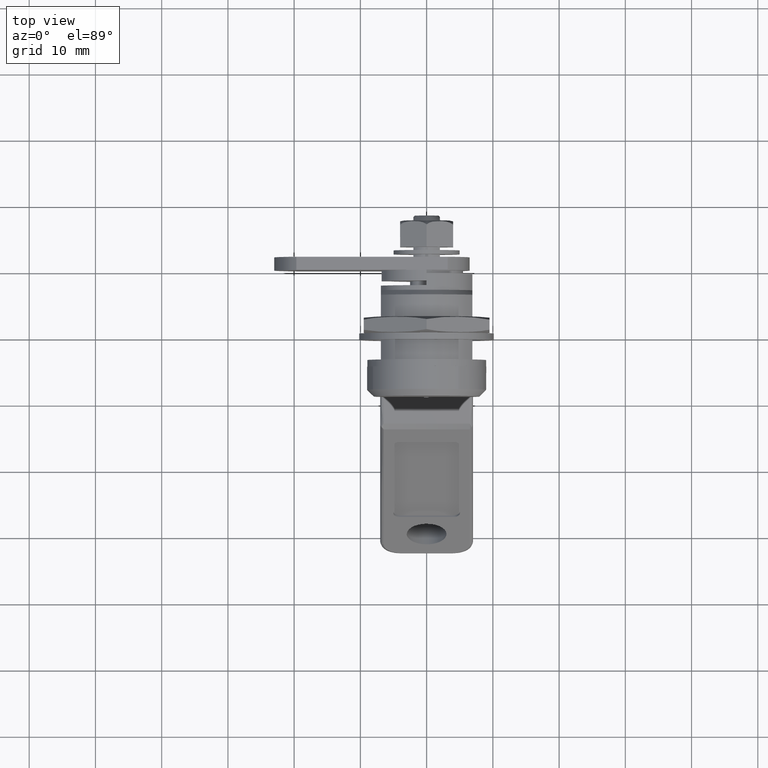
[diagram: clean part render]
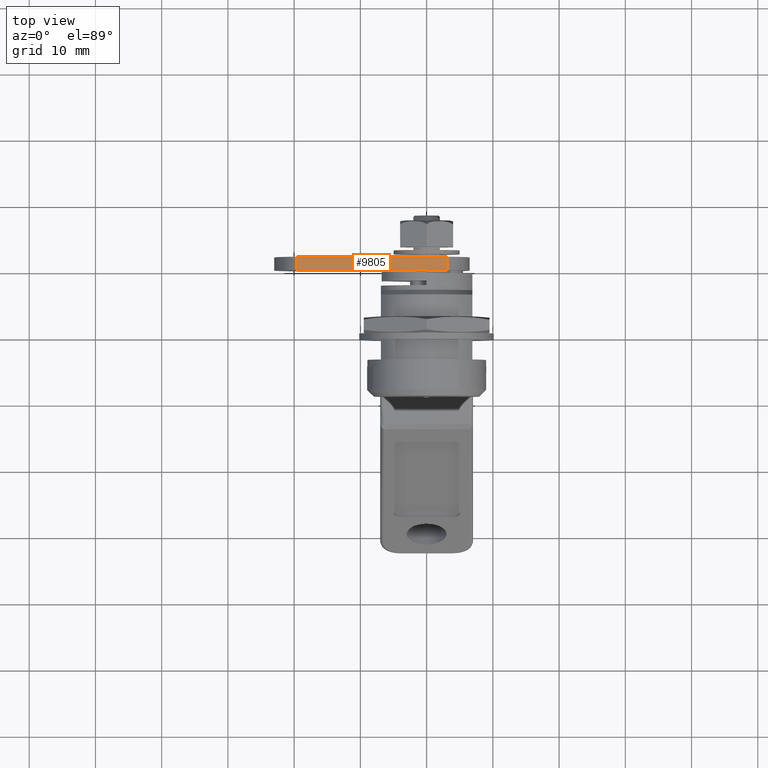
[diagram: same view with one face highlighted and labeled with its STEP entity id]
A machine part, top view. The second image highlights one B-rep face of the part: STEP entity #9805.
In plain terms, the highlighted face is a freeform B-spline surface patch.
Its self-contained STEP definition (entity closure, byte-faithful):
#9652=CARTESIAN_POINT('',(21.000005999999949,19.663706716497700,6.499998428728301));
#9653=VERTEX_POINT('',#9652);
#9676=CARTESIAN_POINT('',(19.000005999999949,19.663706716497700,6.499998428728301));
#9677=VERTEX_POINT('',#9676);
#9693=CARTESIAN_POINT('',(19.000005999999949,19.663706716497700,6.499998428728301));
#9694=CARTESIAN_POINT('',(21.000005999999949,19.663706716497700,6.499998428728301));
#9695=QUASI_UNIFORM_CURVE('',1,(#9693,#9694),.UNSPECIFIED.,.F.,.U.);
#9696=EDGE_CURVE('',#9677,#9653,#9695,.T.);
#9743=CARTESIAN_POINT('',(21.000005999999949,-3.163689561016355,6.499999975266700));
#9744=VERTEX_POINT('',#9743);
#9760=CARTESIAN_POINT('',(19.000005999999949,-3.163689561016355,6.499999975266700));
#9761=VERTEX_POINT('',#9760);
#9762=CARTESIAN_POINT('',(19.000005999999949,-3.163689561016355,6.499999975266700));
#9763=CARTESIAN_POINT('',(21.000005999999949,-3.163689561016355,6.499999975266700));
#9764=QUASI_UNIFORM_CURVE('',1,(#9762,#9763),.UNSPECIFIED.,.F.,.U.);
#9765=EDGE_CURVE('',#9761,#9744,#9764,.T.);
#9786=CARTESIAN_POINT('',(18.900105717774039,20.803934259166549,6.500000000000000));
#9787=CARTESIAN_POINT('',(18.900105717774039,-4.303918532334994,6.500000000000000));
#9788=CARTESIAN_POINT('',(21.099905763665451,20.803934259166549,6.500000000000000));
#9789=CARTESIAN_POINT('',(21.099905763665451,-4.303918532334994,6.500000000000000));
#9790=B_SPLINE_SURFACE_WITH_KNOTS('',1,1,((#9786,#9788),(#9787,#9789)),.UNSPECIFIED.,.F.,.F.,.U.,(2,2),(2,2),(0.0,25.107852791501539),(0.0,2.199800045891408),.UNSPECIFIED.);
#9791=CARTESIAN_POINT('',(21.000005999999949,19.663706716497700,6.499998428728301));
#9792=CARTESIAN_POINT('',(21.000005999999949,-3.163689561016355,6.499999975266700));
#9793=QUASI_UNIFORM_CURVE('',1,(#9791,#9792),.UNSPECIFIED.,.F.,.U.);
#9794=EDGE_CURVE('',#9653,#9744,#9793,.T.);
#9795=ORIENTED_EDGE('',*,*,#9794,.F.);
#9796=ORIENTED_EDGE('',*,*,#9696,.F.);
#9797=CARTESIAN_POINT('',(19.000005999999949,19.663706716497700,6.499998428728301));
#9798=CARTESIAN_POINT('',(19.000005999999949,-3.163689561016355,6.499999975266700));
#9799=QUASI_UNIFORM_CURVE('',1,(#9797,#9798),.UNSPECIFIED.,.F.,.U.);
#9800=EDGE_CURVE('',#9677,#9761,#9799,.T.);
#9801=ORIENTED_EDGE('',*,*,#9800,.T.);
#9802=ORIENTED_EDGE('',*,*,#9765,.T.);
#9803=EDGE_LOOP('',(#9795,#9796,#9801,#9802));
#9804=FACE_OUTER_BOUND('',#9803,.T.);
#9805=ADVANCED_FACE('',(#9804),#9790,.T.);